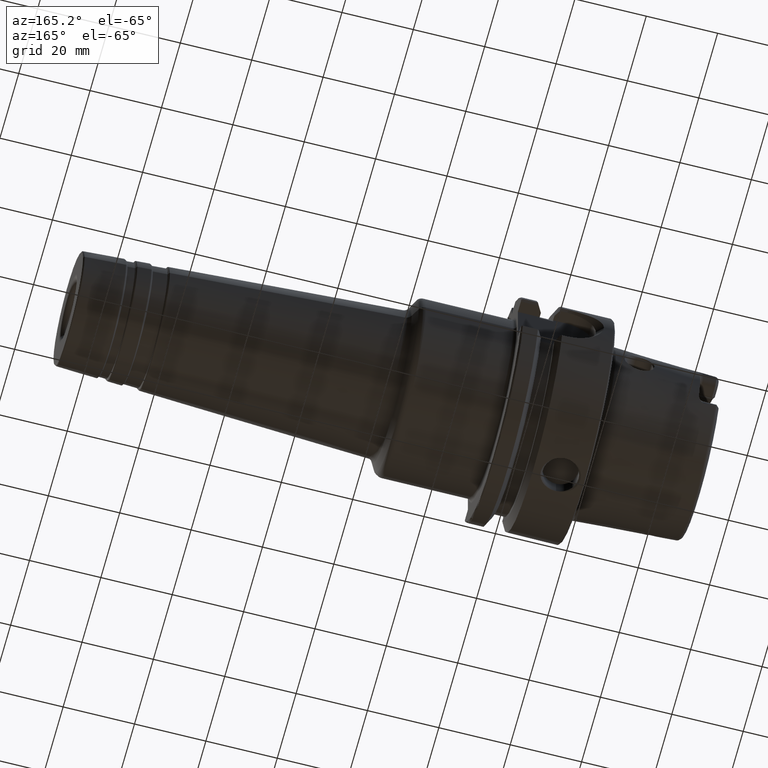
[diagram: clean part render]
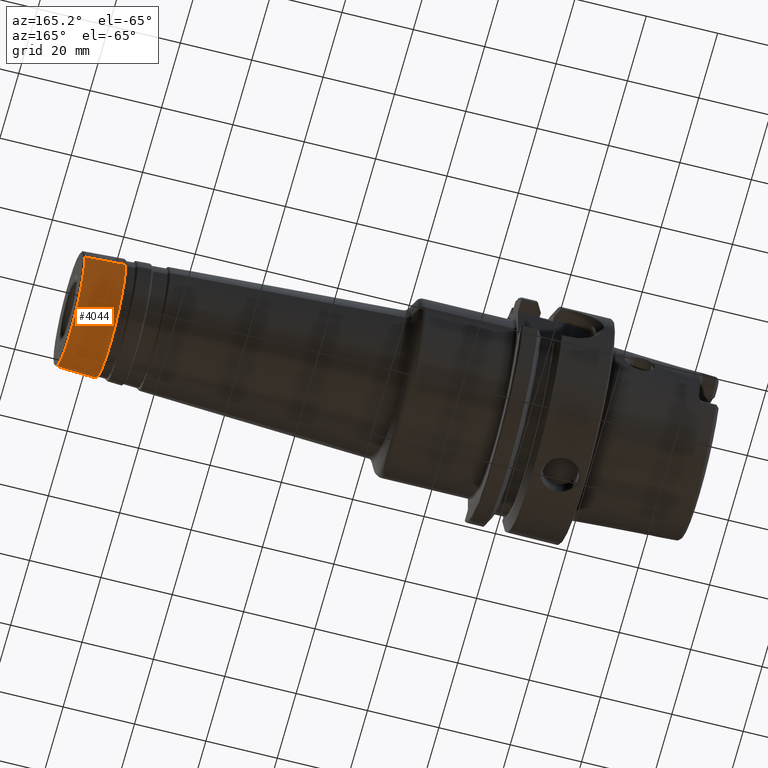
[diagram: same view with one face highlighted and labeled with its STEP entity id]
A machine part, auxiliary view. The second image highlights one B-rep face of the part: STEP entity #4044.
In plain terms, the highlighted conical surface has half-angle 3 deg.
Its self-contained STEP definition (entity closure, byte-faithful):
#577=CARTESIAN_POINT('',(5.690046719125E0,0.E0,0.E0));
#578=DIRECTION('',(-1.E0,0.E0,0.E0));
#579=DIRECTION('',(0.E0,1.E0,0.E0));
#580=AXIS2_PLACEMENT_3D('',#577,#578,#579);
#582=DIRECTION('',(-9.986295347546E-1,5.233595624294E-2,7.676303253587E-12));
#583=VECTOR('',#582,4.448535311992E-1);
#584=CARTESIAN_POINT('',(5.690046719126E0,6.309932993607E-1,
-3.413443967018E-12));
#585=LINE('',#584,#583);
#586=CARTESIAN_POINT('',(5.245802844230E0,0.E0,0.E0));
#587=DIRECTION('',(1.E0,0.E0,0.E0));
#588=DIRECTION('',(0.E0,-1.E0,0.E0));
#589=AXIS2_PLACEMENT_3D('',#586,#587,#588);
#591=DIRECTION('',(-9.986295347546E-1,-5.233595624294E-2,-7.676172734754E-12));
#592=VECTOR('',#591,4.448535311992E-1);
#593=CARTESIAN_POINT('',(5.690046719126E0,-6.309932993607E-1,
3.413282980920E-12));
#594=LINE('',#593,#592);
#3330=CARTESIAN_POINT('',(5.245802844230E0,-6.542751343041E-1,0.E0));
#3331=CARTESIAN_POINT('',(5.245802844230E0,6.542751343041E-1,0.E0));
#3332=VERTEX_POINT('',#3330);
#3333=VERTEX_POINT('',#3331);
#3334=CARTESIAN_POINT('',(5.690046719125E0,6.309932993608E-1,0.E0));
#3335=CARTESIAN_POINT('',(5.690046719125E0,-6.309932993608E-1,0.E0));
#3336=VERTEX_POINT('',#3334);
#3337=VERTEX_POINT('',#3335);
#4030=CARTESIAN_POINT('',(3.949440717672E0,0.E0,0.E0));
#4031=DIRECTION('',(-1.E0,0.E0,0.E0));
#4032=DIRECTION('',(0.E0,1.E0,0.E0));
#4033=AXIS2_PLACEMENT_3D('',#4030,#4031,#4032);
#4034=CONICAL_SURFACE('',#4033,7.222145945036E-1,3.E0);
#4035=ORIENTED_EDGE('',*,*,#3988,.F.);
#4037=ORIENTED_EDGE('',*,*,#4036,.T.);
#4039=ORIENTED_EDGE('',*,*,#4038,.F.);
#4041=ORIENTED_EDGE('',*,*,#4040,.F.);
#4042=EDGE_LOOP('',(#4035,#4037,#4039,#4041));
#4043=FACE_OUTER_BOUND('',#4042,.F.);
#4044=ADVANCED_FACE('',(#4043),#4034,.T.);
#581=CIRCLE('',#580,6.309932993608E-1);
#590=CIRCLE('',#589,6.542751343041E-1);
#3988=EDGE_CURVE('',#3336,#3337,#581,.T.);
#4036=EDGE_CURVE('',#3336,#3333,#585,.T.);
#4038=EDGE_CURVE('',#3332,#3333,#590,.T.);
#4040=EDGE_CURVE('',#3337,#3332,#594,.T.);